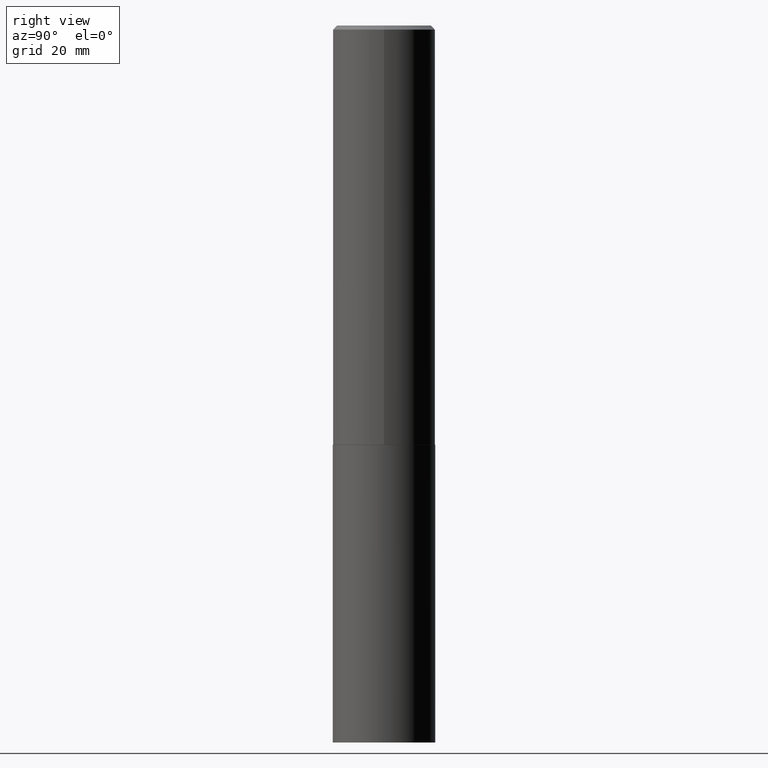
[diagram: clean part render]
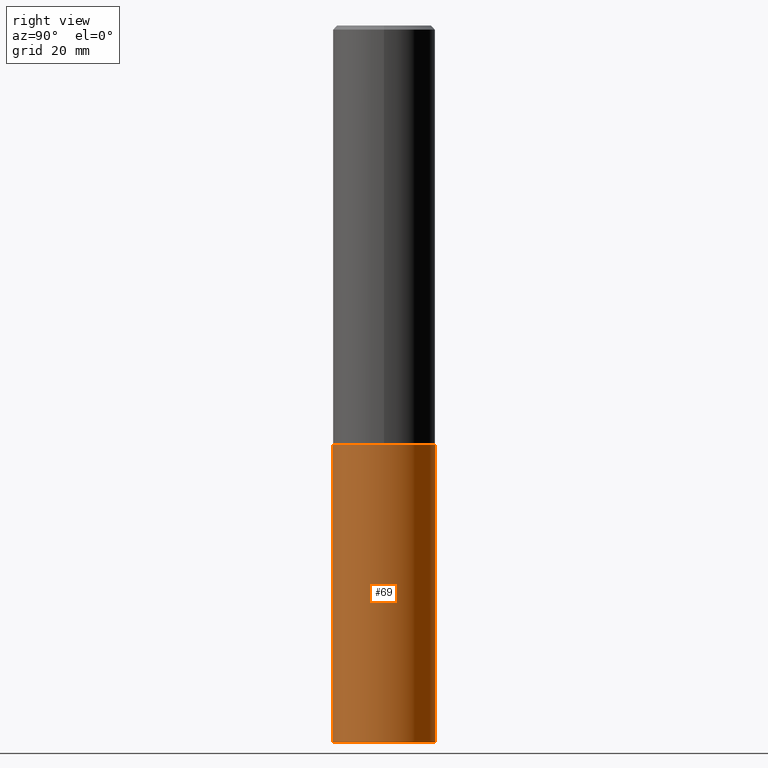
[diagram: same view with one face highlighted and labeled with its STEP entity id]
A machine part, right view. The second image highlights one B-rep face of the part: STEP entity #69.
In plain terms, the highlighted cylindrical surface (partial cylindrical patch) has radius 10 mm, axis along (-0, 0, 1).
Its self-contained STEP definition (entity closure, byte-faithful):
#7 = EDGE_LOOP ( 'NONE', ( #201, #110, #126, #357 ) ) ;
#38 = VERTEX_POINT ( 'NONE', #322 ) ;
#49 = CIRCLE ( 'NONE', #264, 0.3937000000000000499 ) ;
#55 = VECTOR ( 'NONE', #57, 39.37007874015748143 ) ;
#57 = DIRECTION ( 'NONE',  ( -2.445668549663379467E-29, 3.491195294813608409E-15, 1.000000000000000000 ) ) ;
#66 = VERTEX_POINT ( 'NONE', #154 ) ;
#69 = ADVANCED_FACE ( 'NONE', ( #187 ), #190, .T. ) ;
#70 = AXIS2_PLACEMENT_3D ( 'NONE', #301, #249, #251 ) ;
#98 = VECTOR ( 'NONE', #134, 39.37007874015748143 ) ;
#110 = ORIENTED_EDGE ( 'NONE', *, *, #273, .T. ) ;
#126 = ORIENTED_EDGE ( 'NONE', *, *, #307, .F. ) ;
#133 = CARTESIAN_POINT ( 'NONE',  ( 2.797406750687620888E-15, 0.3936999999999807875, -5.511800000000000921 ) ) ;
#134 = DIRECTION ( 'NONE',  ( -2.445668549663379467E-29, 3.491195294813608409E-15, 1.000000000000000000 ) ) ;
#135 = EDGE_CURVE ( 'NONE', #234, #66, #246, .T. ) ;
#143 = CARTESIAN_POINT ( 'NONE',  ( 2.797406750687592884E-15, 0.3936999999999887812, -3.222800000000001663 ) ) ;
#154 = CARTESIAN_POINT ( 'NONE',  ( -2.749192406205004330E-15, -0.3937000000000113187, -3.222799999999998111 ) ) ;
#171 = DIRECTION ( 'NONE',  ( -2.445668549663379467E-29, 3.491195294813608803E-15, 1.000000000000000000 ) ) ;
#172 = CARTESIAN_POINT ( 'NONE',  ( 7.881256868573458543E-29, -1.125234605882368832E-14, -3.222799999999999887 ) ) ;
#187 = FACE_OUTER_BOUND ( 'NONE', #7, .T. ) ;
#190 = CYLINDRICAL_SURFACE ( 'NONE', #70, 0.3937000000000000499 ) ;
#201 = ORIENTED_EDGE ( 'NONE', *, *, #341, .T. ) ;
#216 = CIRCLE ( 'NONE', #292, 0.3937000000000000499 ) ;
#231 = VERTEX_POINT ( 'NONE', #133 ) ;
#234 = VERTEX_POINT ( 'NONE', #345 ) ;
#246 = LINE ( 'NONE', #303, #98 ) ;
#249 = DIRECTION ( 'NONE',  ( -2.445668549663379467E-29, 3.491195294813608803E-15, 1.000000000000000000 ) ) ;
#251 = DIRECTION ( 'NONE',  ( -6.982962677686265133E-15, -1.000000000000000000, 4.163344669033674845E-15 ) ) ;
#253 = CARTESIAN_POINT ( 'NONE',  ( 1.347939217875293275E-28, -1.924369208865203998E-14, -5.511800000000000033 ) ) ;
#255 = DIRECTION ( 'NONE',  ( -6.982962677686265133E-15, -1.000000000000000000, 2.775563112689116301E-15 ) ) ;
#264 = AXIS2_PLACEMENT_3D ( 'NONE', #253, #314, #255 ) ;
#273 = EDGE_CURVE ( 'NONE', #231, #38, #312, .T. ) ;
#283 = DIRECTION ( 'NONE',  ( -6.982962677686265133E-15, -1.000000000000000000, 4.163344669033674845E-15 ) ) ;
#292 = AXIS2_PLACEMENT_3D ( 'NONE', #172, #171, #283 ) ;
#301 = CARTESIAN_POINT ( 'NONE',  ( 7.881256868573458543E-29, -1.125234605882368832E-14, -3.222799999999999887 ) ) ;
#303 = CARTESIAN_POINT ( 'NONE',  ( -2.749192406205004330E-15, -0.3937000000000113187, -3.222799999999998111 ) ) ;
#307 = EDGE_CURVE ( 'NONE', #66, #38, #216, .T. ) ;
#312 = LINE ( 'NONE', #143, #55 ) ;
#314 = DIRECTION ( 'NONE',  ( -2.445668549663379467E-29, 3.491195294813608803E-15, 1.000000000000000000 ) ) ;
#322 = CARTESIAN_POINT ( 'NONE',  ( 2.797406750687648893E-15, 0.3936999999999887812, -3.222800000000001663 ) ) ;
#341 = EDGE_CURVE ( 'NONE', #234, #231, #49, .T. ) ;
#345 = CARTESIAN_POINT ( 'NONE',  ( -2.749192406204947927E-15, -0.3937000000000192568, -5.511799999999999145 ) ) ;
#357 = ORIENTED_EDGE ( 'NONE', *, *, #135, .F. ) ;